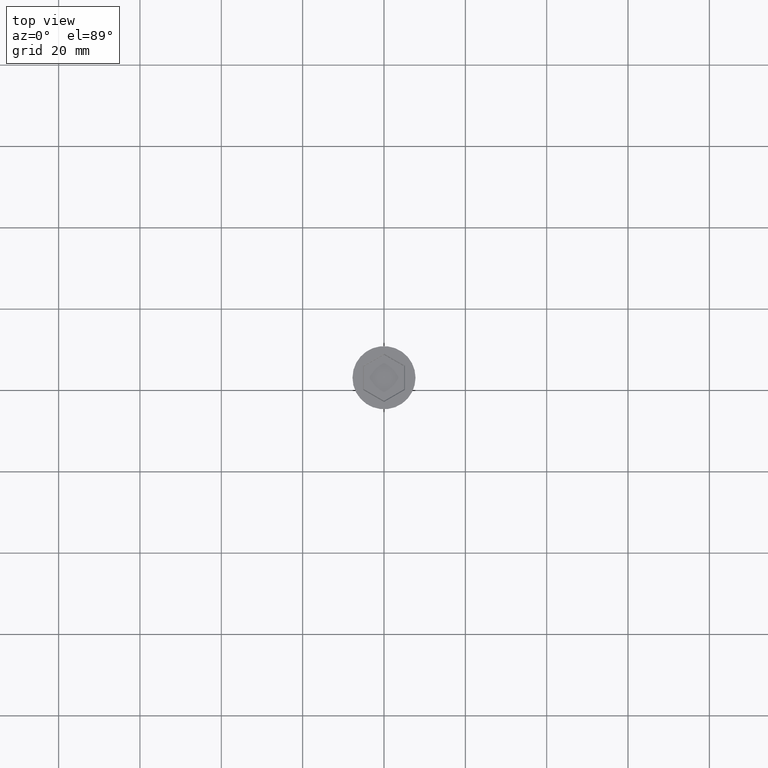
[diagram: clean part render]
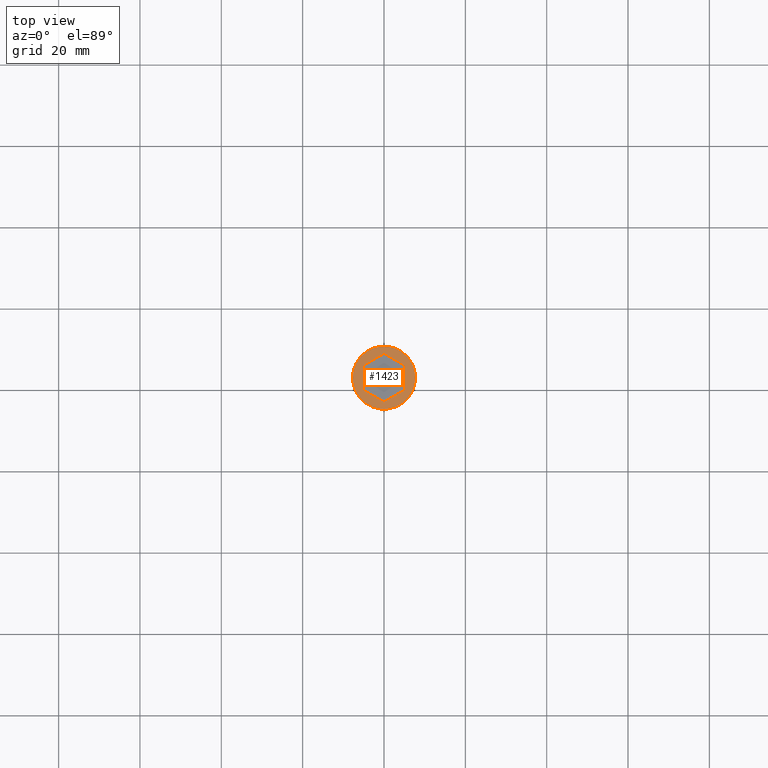
[diagram: same view with one face highlighted and labeled with its STEP entity id]
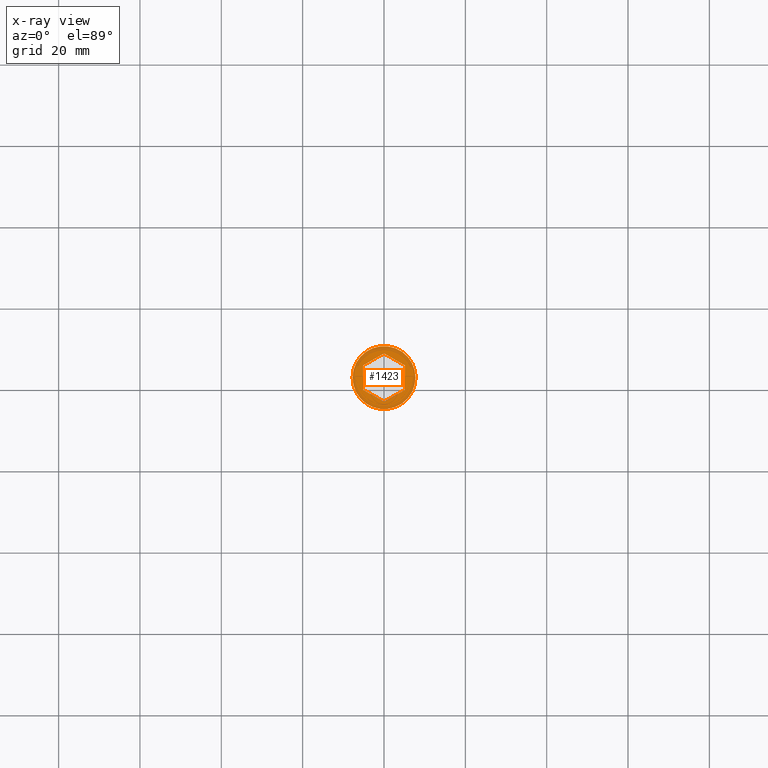
[diagram: x-ray of the same camera — body ghosted, the highlighted face saturated]
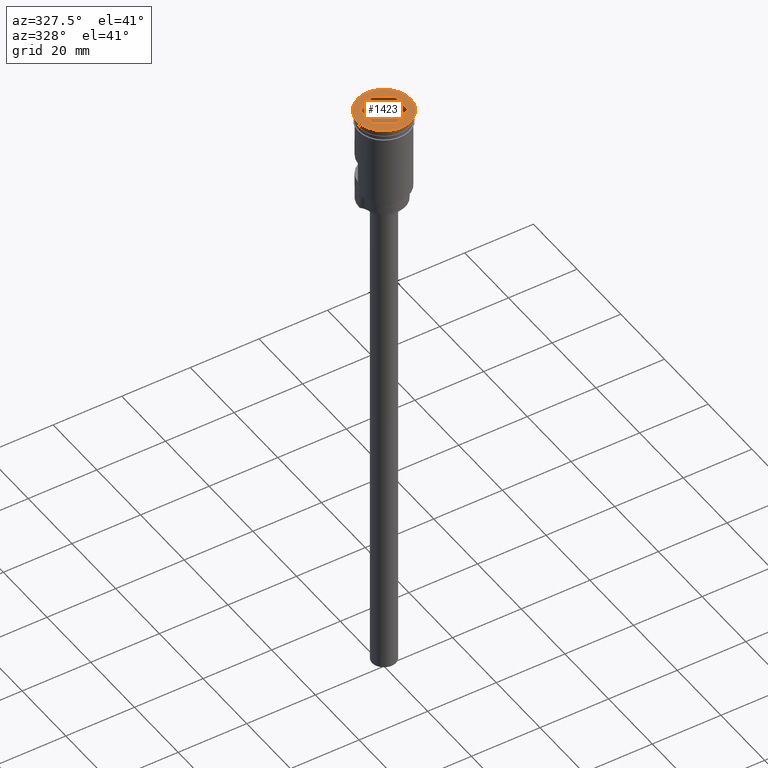
[diagram: same view with one face highlighted and labeled with its STEP entity id]
A machine part, top view. The second image highlights one B-rep face of the part: STEP entity #1423.
The next image is the same camera in x-ray: the body ghosted, the highlighted face saturated — about 0% of this face is hidden behind the body in this view.
A second angle (auxiliary view) of the same face is appended — the face is thin or edge-on in the first view.
In plain terms, the highlighted planar face has unit normal (0, -0, 1).
Its self-contained STEP definition (entity closure, byte-faithful):
#5 = AXIS2_PLACEMENT_3D ( 'NONE', #339, #1343, #712 ) ;
#32 = ORIENTED_EDGE ( 'NONE', *, *, #173, .T. ) ;
#34 = VECTOR ( 'NONE', #1021, 1000.000000000000000 ) ;
#37 = LINE ( 'NONE', #143, #1205 ) ;
#48 = CARTESIAN_POINT ( 'NONE',  ( -1.734199444926773404E-16, 5.946707772653141433, 0.000000000000000000 ) ) ;
#72 = ORIENTED_EDGE ( 'NONE', *, *, #887, .T. ) ;
#88 = AXIS2_PLACEMENT_3D ( 'NONE', #1285, #933, #677 ) ;
#143 = CARTESIAN_POINT ( 'NONE',  ( -5.049999999999998046, -3.031088913245533867, 0.000000000000000000 ) ) ;
#173 = EDGE_CURVE ( 'NONE', #1340, #708, #1490, .T. ) ;
#178 = ORIENTED_EDGE ( 'NONE', *, *, #1121, .T. ) ;
#223 = FACE_OUTER_BOUND ( 'NONE', #1198, .T. ) ;
#297 = DIRECTION ( 'NONE',  ( 0.8660254037844387076, -0.4999999999999998890, 0.000000000000000000 ) ) ;
#339 = CARTESIAN_POINT ( 'NONE',  ( 0.000000000000000000, 0.000000000000000000, 0.000000000000000000 ) ) ;
#353 = CARTESIAN_POINT ( 'NONE',  ( -6.009497731616443387E-16, -5.946707772653142321, 0.000000000000000000 ) ) ;
#366 = EDGE_CURVE ( 'NONE', #1063, #546, #1171, .T. ) ;
#389 = ORIENTED_EDGE ( 'NONE', *, *, #1279, .T. ) ;
#408 = EDGE_CURVE ( 'NONE', #1153, #673, #566, .T. ) ;
#480 = CARTESIAN_POINT ( 'NONE',  ( -0.09999999999999802103, 5.888972745734180059, 0.000000000000000000 ) ) ;
#511 = EDGE_CURVE ( 'NONE', #708, #1153, #1568, .T. ) ;
#522 = LINE ( 'NONE', #1025, #1397 ) ;
#527 = VECTOR ( 'NONE', #297, 1000.000000000000000 ) ;
#546 = VERTEX_POINT ( 'NONE', #353 ) ;
#549 = ORIENTED_EDGE ( 'NONE', *, *, #1064, .T. ) ;
#553 = VECTOR ( 'NONE', #1417, 1000.000000000000000 ) ;
#566 = LINE ( 'NONE', #1403, #527 ) ;
#589 = DIRECTION ( 'NONE',  ( -0.000000000000000000, -0.000000000000000000, 1.000000000000000000 ) ) ;
#640 = CARTESIAN_POINT ( 'NONE',  ( -5.149999999999997691, 2.973353886326570272, 0.000000000000000000 ) ) ;
#645 = CARTESIAN_POINT ( 'NONE',  ( -7.750000000000000000, 9.491012693391987787E-16, 0.000000000000000000 ) ) ;
#652 = CARTESIAN_POINT ( 'NONE',  ( 5.149999999999997691, -2.973353886326571605, 0.000000000000000000 ) ) ;
#673 = VERTEX_POINT ( 'NONE', #1489 ) ;
#677 = DIRECTION ( 'NONE',  ( 1.000000000000000000, 0.000000000000000000, 0.000000000000000000 ) ) ;
#678 = CARTESIAN_POINT ( 'NONE',  ( 7.750000000000000000, 0.000000000000000000, 0.000000000000000000 ) ) ;
#708 = VERTEX_POINT ( 'NONE', #640 ) ;
#712 = DIRECTION ( 'NONE',  ( 1.000000000000000000, 0.000000000000000000, 0.000000000000000000 ) ) ;
#737 = VERTEX_POINT ( 'NONE', #678 ) ;
#771 = ORIENTED_EDGE ( 'NONE', *, *, #408, .T. ) ;
#837 = ORIENTED_EDGE ( 'NONE', *, *, #366, .T. ) ;
#867 = PLANE ( 'NONE',  #5 ) ;
#876 = CIRCLE ( 'NONE', #88, 7.750000000000000000 ) ;
#887 = EDGE_CURVE ( 'NONE', #737, #1068, #1376, .T. ) ;
#907 = DIRECTION ( 'NONE',  ( -1.517489493673898021E-16, -1.000000000000000000, 0.000000000000000000 ) ) ;
#933 = DIRECTION ( 'NONE',  ( -0.000000000000000000, -0.000000000000000000, 1.000000000000000000 ) ) ;
#968 = CARTESIAN_POINT ( 'NONE',  ( -5.149999999999997691, -2.973353886326571160, 0.000000000000000000 ) ) ;
#1021 = DIRECTION ( 'NONE',  ( 0.000000000000000000, 1.000000000000000000, 0.000000000000000000 ) ) ;
#1025 = CARTESIAN_POINT ( 'NONE',  ( 5.149999999999997691, -2.857883832488648412, 0.000000000000000000 ) ) ;
#1054 = EDGE_LOOP ( 'NONE', ( #549, #32, #1451, #771, #178, #837 ) ) ;
#1063 = VERTEX_POINT ( 'NONE', #652 ) ;
#1064 = EDGE_CURVE ( 'NONE', #546, #1340, #37, .T. ) ;
#1068 = VERTEX_POINT ( 'NONE', #645 ) ;
#1121 = EDGE_CURVE ( 'NONE', #673, #1063, #522, .T. ) ;
#1152 = VECTOR ( 'NONE', #1334, 1000.000000000000114 ) ;
#1153 = VERTEX_POINT ( 'NONE', #48 ) ;
#1171 = LINE ( 'NONE', #1315, #553 ) ;
#1198 = EDGE_LOOP ( 'NONE', ( #72, #389 ) ) ;
#1205 = VECTOR ( 'NONE', #1474, 1000.000000000000114 ) ;
#1233 = AXIS2_PLACEMENT_3D ( 'NONE', #1469, #589, #1589 ) ;
#1279 = EDGE_CURVE ( 'NONE', #1068, #737, #876, .T. ) ;
#1285 = CARTESIAN_POINT ( 'NONE',  ( 0.000000000000000000, 0.000000000000000000, 0.000000000000000000 ) ) ;
#1315 = CARTESIAN_POINT ( 'NONE',  ( 0.09999999999999799327, -5.888972745734180947, 0.000000000000000000 ) ) ;
#1334 = DIRECTION ( 'NONE',  ( 0.8660254037844385966, 0.4999999999999999445, 0.000000000000000000 ) ) ;
#1340 = VERTEX_POINT ( 'NONE', #968 ) ;
#1343 = DIRECTION ( 'NONE',  ( 0.000000000000000000, -0.000000000000000000, 1.000000000000000000 ) ) ;
#1376 = CIRCLE ( 'NONE', #1233, 7.750000000000000000 ) ;
#1397 = VECTOR ( 'NONE', #907, 1000.000000000000000 ) ;
#1403 = CARTESIAN_POINT ( 'NONE',  ( 5.049999999999998046, 3.031088913245532979, 0.000000000000000000 ) ) ;
#1417 = DIRECTION ( 'NONE',  ( -0.8660254037844387076, -0.4999999999999998890, 0.000000000000000000 ) ) ;
#1423 = ADVANCED_FACE ( 'NONE', ( #1467, #223 ), #867, .T. ) ;
#1451 = ORIENTED_EDGE ( 'NONE', *, *, #511, .T. ) ;
#1467 = FACE_BOUND ( 'NONE', #1054, .T. ) ;
#1469 = CARTESIAN_POINT ( 'NONE',  ( 0.000000000000000000, 0.000000000000000000, 0.000000000000000000 ) ) ;
#1474 = DIRECTION ( 'NONE',  ( -0.8660254037844385966, 0.5000000000000001110, 0.000000000000000000 ) ) ;
#1489 = CARTESIAN_POINT ( 'NONE',  ( 5.149999999999998579, 2.973353886326570272, 0.000000000000000000 ) ) ;
#1490 = LINE ( 'NONE', #1512, #34 ) ;
#1512 = CARTESIAN_POINT ( 'NONE',  ( -5.149999999999997691, 2.857883832488647524, 0.000000000000000000 ) ) ;
#1568 = LINE ( 'NONE', #480, #1152 ) ;
#1589 = DIRECTION ( 'NONE',  ( 1.000000000000000000, 0.000000000000000000, 0.000000000000000000 ) ) ;